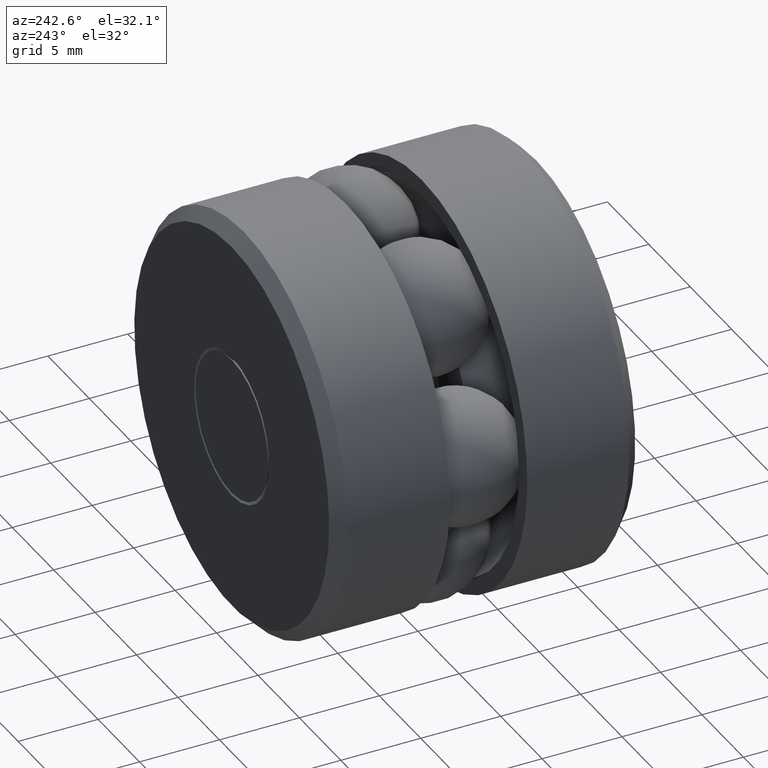
[diagram: clean part render]
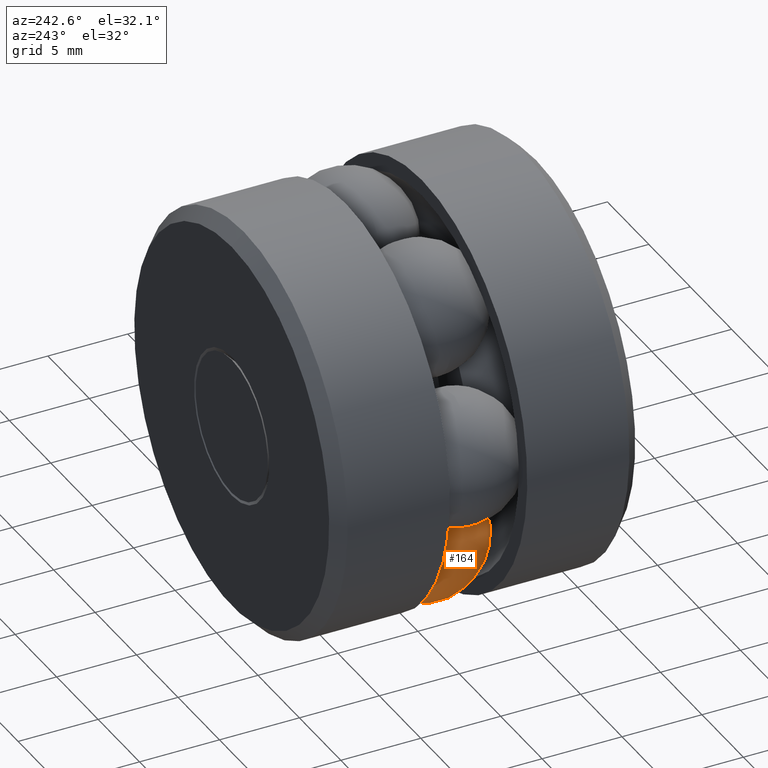
[diagram: same view with one face highlighted and labeled with its STEP entity id]
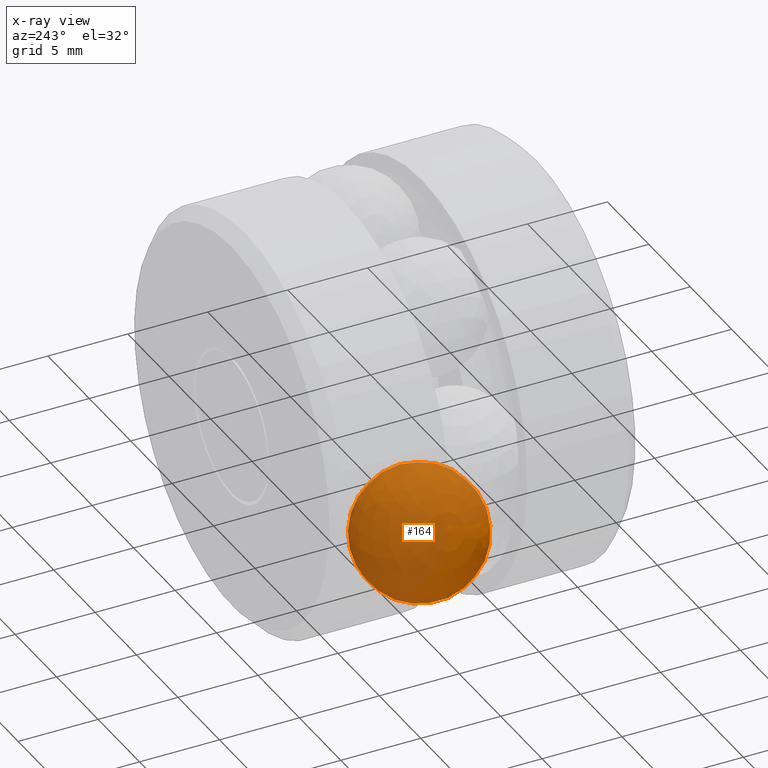
[diagram: x-ray of the same camera — body ghosted, the highlighted face saturated]
A machine part, auxiliary view. The second image highlights one B-rep face of the part: STEP entity #164.
The next image is the same camera in x-ray: the body ghosted, the highlighted face saturated — about 79% of this face is hidden behind the body in this view.
In plain terms, the highlighted spherical surface has radius 3.9624 mm.
Its self-contained STEP definition (entity closure, byte-faithful):
#5 = DIRECTION ( 'NONE',  ( 0.5000000000000101000, 0.0000000000000000000, 0.8660254037844328200 ) ) ;
#164 = ADVANCED_FACE ( 'NONE', ( ), #450, .T. ) ;
#197 = CARTESIAN_POINT ( 'NONE',  ( -0.1675000000000033400, 0.3750000000000001100, -0.2901185102677849600 ) ) ;
#414 = DIRECTION ( 'NONE',  ( 0.8660254037844328200, 0.0000000000000000000, -0.5000000000000101000 ) ) ;
#450 = SPHERICAL_SURFACE ( 'NONE', #531, 0.1560000000000000000 ) ;
#531 = AXIS2_PLACEMENT_3D ( 'NONE', #197, #414, #5 ) ;